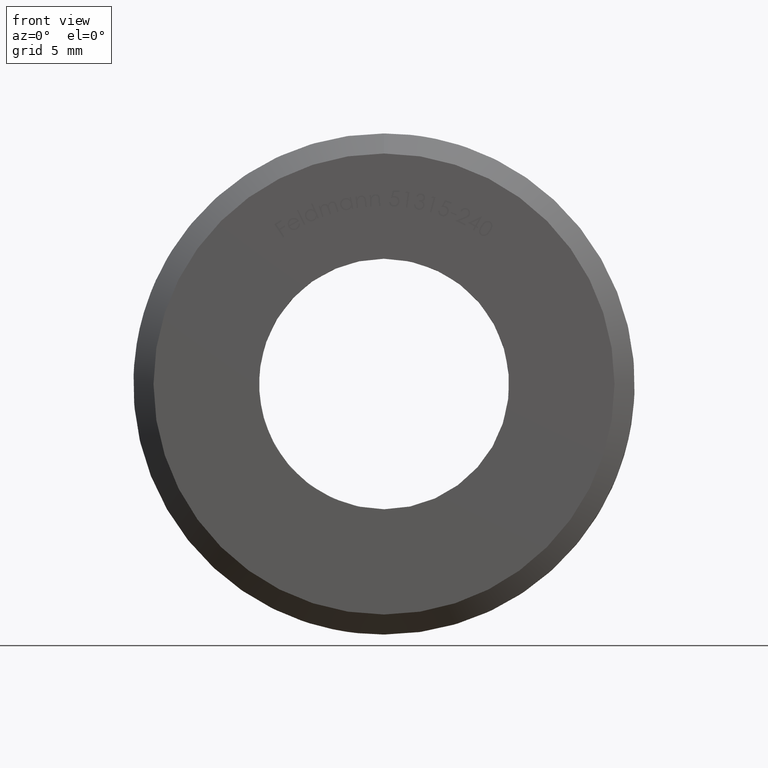
[diagram: clean part render]
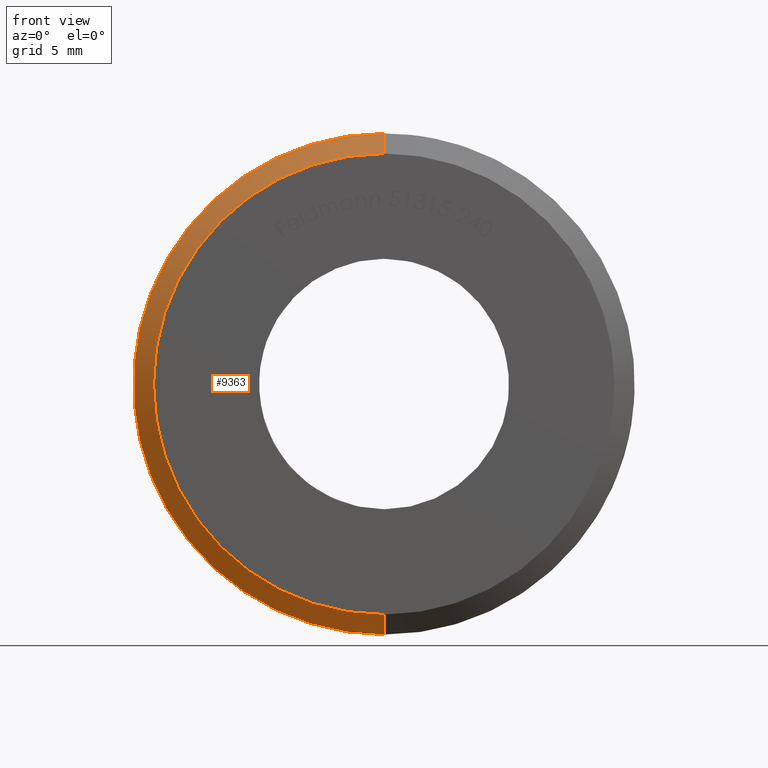
[diagram: same view with one face highlighted and labeled with its STEP entity id]
A machine part, front view. The second image highlights one B-rep face of the part: STEP entity #9363.
In plain terms, the highlighted conical surface has half-angle 45 deg.
Its self-contained STEP definition (entity closure, byte-faithful):
#747 = DIRECTION ( 'NONE',  ( 0.000000000000000000, 0.000000000000000000, 1.000000000000000000 ) ) ;
#766 = AXIS2_PLACEMENT_3D ( 'NONE', #12082, #2629, #747 ) ;
#878 = ORIENTED_EDGE ( 'NONE', *, *, #1442, .F. ) ;
#1119 = CONICAL_SURFACE ( 'NONE', #9129, 12.50000000000000000, 0.7853981633974500554 ) ;
#1442 = EDGE_CURVE ( 'NONE', #2080, #4481, #5252, .T. ) ;
#1555 = CARTESIAN_POINT ( 'NONE',  ( 0.000000000000000000, 1.000000000000004441, 0.000000000000000000 ) ) ;
#2080 = VERTEX_POINT ( 'NONE', #5758 ) ;
#2301 = CARTESIAN_POINT ( 'NONE',  ( 0.000000000000000000, 0.000000000000000000, 11.49999999999999289 ) ) ;
#2391 = CARTESIAN_POINT ( 'NONE',  ( 1.530808498934191521E-15, 1.000000000000004441, -12.50000000000000000 ) ) ;
#2443 = VECTOR ( 'NONE', #3343, 1000.000000000000000 ) ;
#2629 = DIRECTION ( 'NONE',  ( -0.000000000000000000, -1.000000000000000000, -0.000000000000000000 ) ) ;
#2637 = DIRECTION ( 'NONE',  ( -0.000000000000000000, 1.000000000000000000, -0.000000000000000000 ) ) ;
#3343 = DIRECTION ( 'NONE',  ( 8.659560562354948882E-17, 0.7071067811865463515, -0.7071067811865487940 ) ) ;
#3748 = LINE ( 'NONE', #6912, #8469 ) ;
#4481 = VERTEX_POINT ( 'NONE', #9284 ) ;
#4757 = CARTESIAN_POINT ( 'NONE',  ( 0.000000000000000000, 1.000000000000004441, 0.000000000000000000 ) ) ;
#5252 = LINE ( 'NONE', #2391, #2443 ) ;
#5758 = CARTESIAN_POINT ( 'NONE',  ( 1.469576158976823553E-15, 0.000000000000000000, -11.49999999999999289 ) ) ;
#6039 = CIRCLE ( 'NONE', #766, 11.49999999999999289 ) ;
#6101 = EDGE_LOOP ( 'NONE', ( #878, #11863, #7464, #9432 ) ) ;
#6912 = CARTESIAN_POINT ( 'NONE',  ( 0.000000000000000000, 1.000000000000004441, 12.50000000000000000 ) ) ;
#7464 = ORIENTED_EDGE ( 'NONE', *, *, #7677, .T. ) ;
#7596 = DIRECTION ( 'NONE',  ( 0.000000000000000000, 0.000000000000000000, 1.000000000000000000 ) ) ;
#7677 = EDGE_CURVE ( 'NONE', #11169, #11309, #3748, .T. ) ;
#7839 = EDGE_CURVE ( 'NONE', #4481, #11309, #11270, .T. ) ;
#8469 = VECTOR ( 'NONE', #11588, 1000.000000000000000 ) ;
#8507 = FACE_OUTER_BOUND ( 'NONE', #6101, .T. ) ;
#9088 = DIRECTION ( 'NONE',  ( 0.000000000000000000, 0.000000000000000000, 1.000000000000000000 ) ) ;
#9129 = AXIS2_PLACEMENT_3D ( 'NONE', #4757, #11352, #7596 ) ;
#9284 = CARTESIAN_POINT ( 'NONE',  ( 0.000000000000000000, 1.000000000000004441, -12.50000000000000000 ) ) ;
#9363 = ADVANCED_FACE ( 'NONE', ( #8507 ), #1119, .T. ) ;
#9432 = ORIENTED_EDGE ( 'NONE', *, *, #7839, .F. ) ;
#11119 = CARTESIAN_POINT ( 'NONE',  ( 1.530808498934191521E-15, 1.000000000000004441, 12.50000000000000000 ) ) ;
#11169 = VERTEX_POINT ( 'NONE', #2301 ) ;
#11270 = CIRCLE ( 'NONE', #11875, 12.50000000000000000 ) ;
#11309 = VERTEX_POINT ( 'NONE', #11119 ) ;
#11352 = DIRECTION ( 'NONE',  ( -0.000000000000000000, 1.000000000000000000, -0.000000000000000000 ) ) ;
#11588 = DIRECTION ( 'NONE',  ( 0.000000000000000000, 0.7071067811865463515, 0.7071067811865487940 ) ) ;
#11863 = ORIENTED_EDGE ( 'NONE', *, *, #11889, .F. ) ;
#11875 = AXIS2_PLACEMENT_3D ( 'NONE', #1555, #2637, #9088 ) ;
#11889 = EDGE_CURVE ( 'NONE', #11169, #2080, #6039, .T. ) ;
#12082 = CARTESIAN_POINT ( 'NONE',  ( 0.000000000000000000, 0.000000000000000000, 0.000000000000000000 ) ) ;